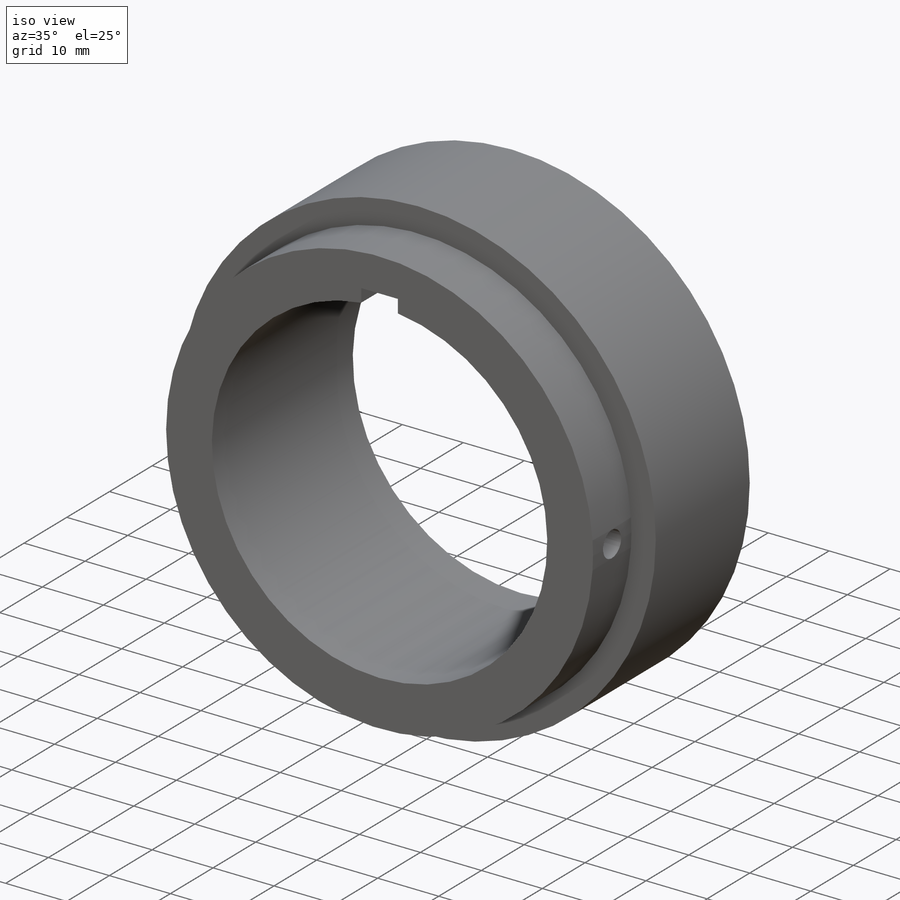
[diagram: iso view]
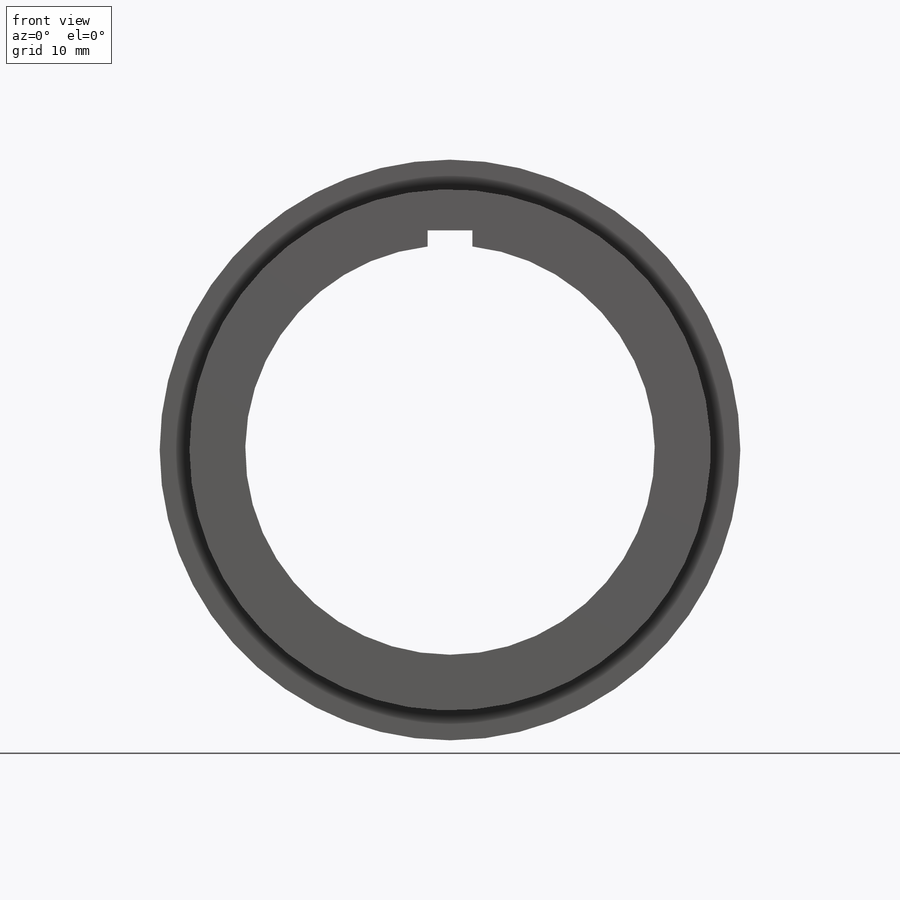
[diagram: front view]
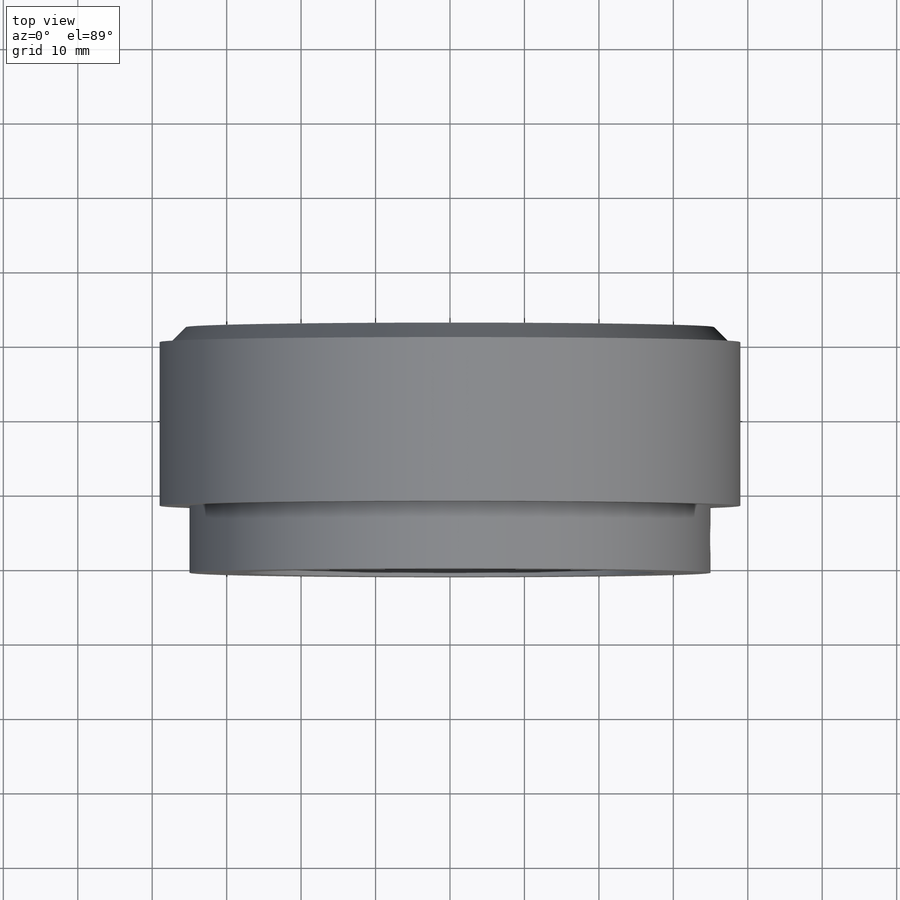
[diagram: top view]
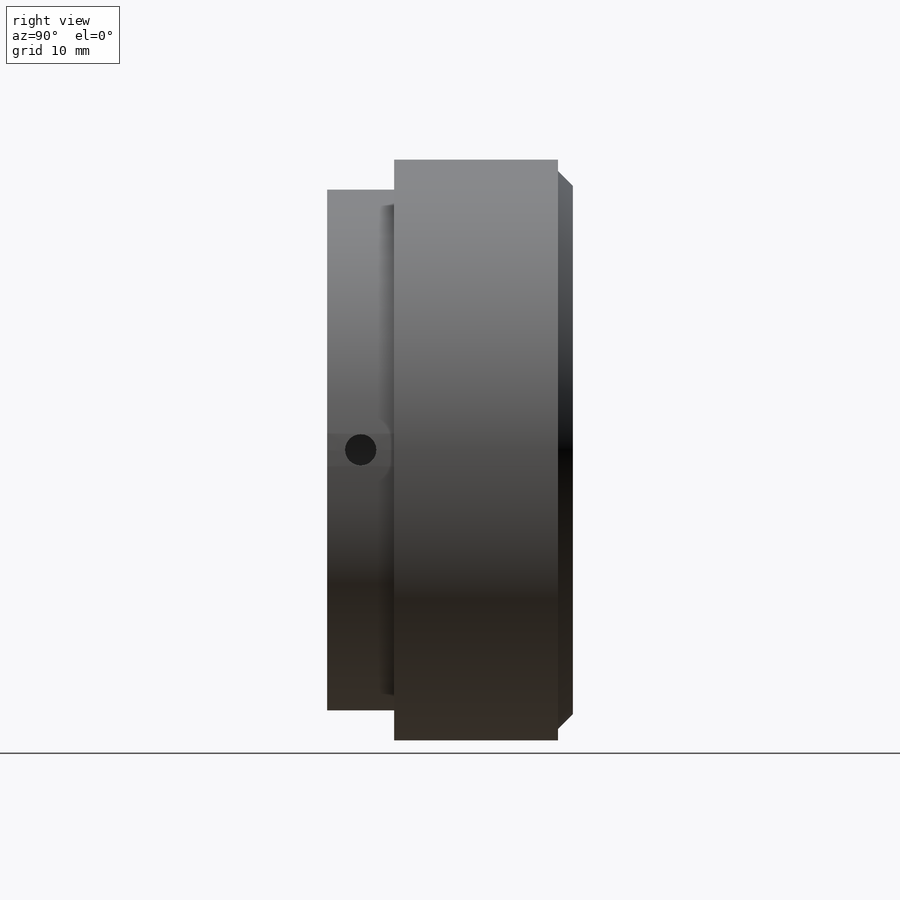
[diagram: right view]
SOLIDWORKS PART (.sldprt)
format: sldprt  version: not decoded by parser v0  size: 250,368 bytes
history: native  units: mm
features: sketch x6, extrude x3, material x1, cut_extrude x1, chamfer x1, plane x1, hole x1, thread x1 (+16 scaffold rows collapsed)
feature tree (31):
  scaffold x16  (default folders/planes/origin — collapsed)
  material  "1023 Carbon Steel Sheet (SS)"
  sketch  "Sketch1"  dims[D1=78.0mm]
  extrude  "Extrude1"  Depth=22mm
  sketch  "Sketch2"  dims[D1=70.0mm]
  extrude  "Extrude2"  Depth=9mm
  sketch  "Sketch4"  dims[D1=75.0mm]
  extrude  "Extrude4"  Depth=2mm
  sketch  "Sketch3"  dims[D1=55.0mm D2=6.0mm D3=2.0mm]
  cut_extrude  "Extrude3"  Depth=113mm
  chamfer  "Chamfer1"  Distance=2mm Angle=45deg
  plane  "Plane1"  Offset=35mm
  hole  "M5 Tapped Hole6"  Diameter=4.2mm Depth=24mm
  sketch  "3DSketch3"  dims[D1=4.5mm]
  sketch  "Sketch7"  dims[hole-wizard template sketch: 47 standard entries collapsed; hole parameters kept: c15.Tap Drill Depth=24.0mm c15.D3=~14.816244mm c15.Drill Angle=118.0deg]
  thread  "Hole Thread1"  Diameter=7.580299mm  [1 undecoded]
decode coverage: 13 of 13 modeling features carry decoded parameters
note: ~ marks probable driven/reference dimensions
note: 1 parameter value undecoded
note: suppression state not decoded; provenance and decode notes live in map.json
